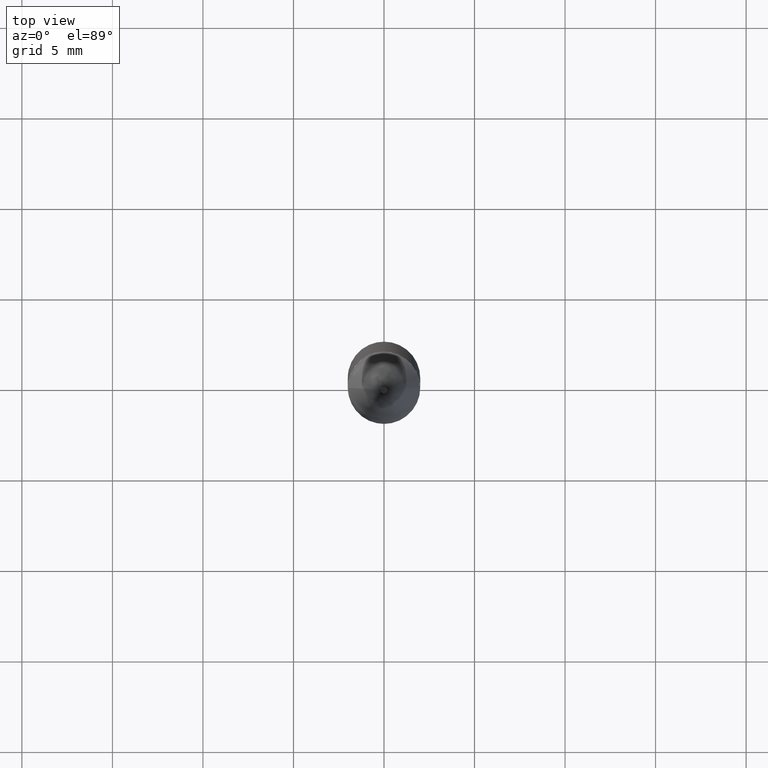
[diagram: clean part render]
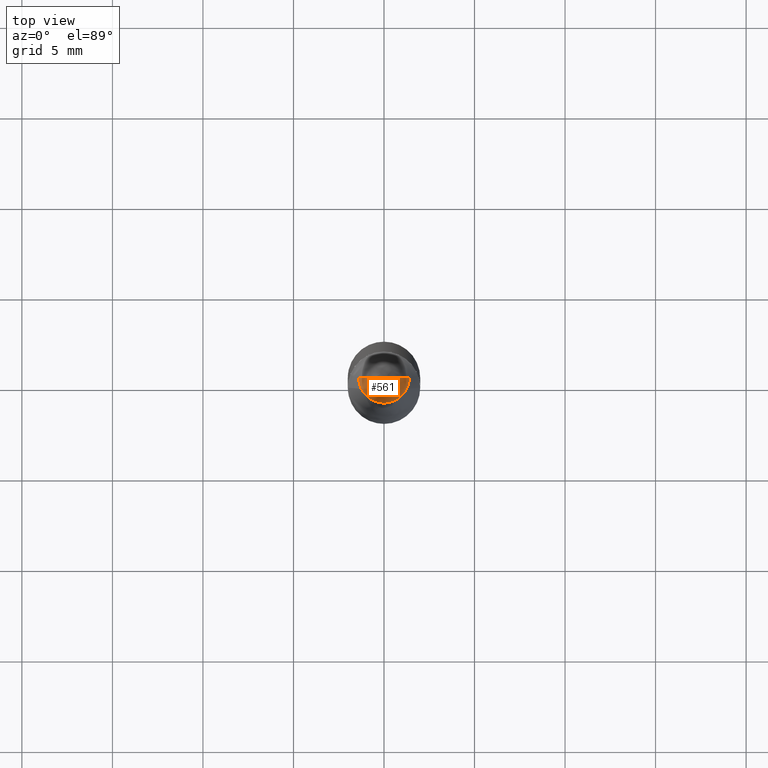
[diagram: same view with one face highlighted and labeled with its STEP entity id]
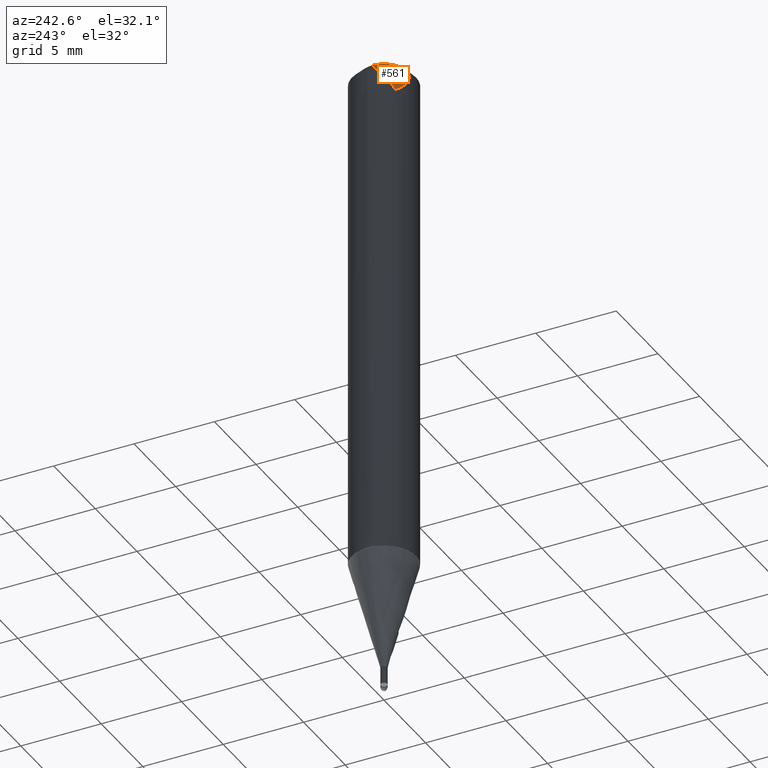
[diagram: same view with one face highlighted and labeled with its STEP entity id]
A machine part, top view. The second image highlights one B-rep face of the part: STEP entity #561.
A second angle (auxiliary view) of the same face is appended — the face is thin or edge-on in the first view.
In plain terms, the highlighted face is a freeform B-spline surface patch.
Its self-contained STEP definition (entity closure, byte-faithful):
#207=CARTESIAN_POINT('',(1.4,0.0,31.78));
#211=CARTESIAN_POINT('',(-1.4,0.0,31.78));
#212=CARTESIAN_POINT('',(0.0,0.0,31.78));
#222=CARTESIAN_POINT('',(-1.4,-1.4,31.78));
#223=CARTESIAN_POINT('',(0.0,-1.4,31.78));
#224=CARTESIAN_POINT('',(1.4,-1.4,31.78));
#546=(
BOUNDED_SURFACE()
B_SPLINE_SURFACE(1,2,(
(#211,#222,#223,#224,#207),
(#212,#212,#212,#212,#212)
), .UNSPECIFIED.,.F.,.F.,.F.)
B_SPLINE_SURFACE_WITH_KNOTS((2,2),(3,2,3),(
0.0,1.0),(
0.0,0.5,1.0), .UNSPECIFIED.)
GEOMETRIC_REPRESENTATION_ITEM()
RATIONAL_B_SPLINE_SURFACE(((1.0,0.707106781187,1.0,0.707106781187,1.0),
(1.0,0.707106781187,1.0,0.707106781187,1.0)
))
REPRESENTATION_ITEM('')
SURFACE()
);
#547=(
BOUNDED_CURVE()
B_SPLINE_CURVE(1,(#212,#207),.UNSPECIFIED.,.F.,.F.)
B_SPLINE_CURVE_WITH_KNOTS((2,2),
(0.0,1.0),.UNSPECIFIED.)
CURVE()
GEOMETRIC_REPRESENTATION_ITEM()
RATIONAL_B_SPLINE_CURVE((1.0,1.0))
REPRESENTATION_ITEM('')
);
#548=(
BOUNDED_CURVE()
B_SPLINE_CURVE(2,(#207,#224,#223,#222,#211),.UNSPECIFIED.,.F.,.F.)
B_SPLINE_CURVE_WITH_KNOTS((3,2,3),
(0.0,0.5,1.0),.UNSPECIFIED.)
CURVE()
GEOMETRIC_REPRESENTATION_ITEM()
RATIONAL_B_SPLINE_CURVE((1.0,0.707106781187,1.0,0.707106781187,1.0))
REPRESENTATION_ITEM('')
);
#549=(
BOUNDED_CURVE()
B_SPLINE_CURVE(1,(#211,#212),.UNSPECIFIED.,.F.,.F.)
B_SPLINE_CURVE_WITH_KNOTS((2,2),
(0.0,1.0),.UNSPECIFIED.)
CURVE()
GEOMETRIC_REPRESENTATION_ITEM()
RATIONAL_B_SPLINE_CURVE((1.0,1.0))
REPRESENTATION_ITEM('')
);
#550=VERTEX_POINT('',#207);
#551=VERTEX_POINT('',#211);
#552=VERTEX_POINT('',#212);
#553=EDGE_CURVE('',#552,#550,#547,.T.);
#554=EDGE_CURVE('',#550,#551,#548,.T.);
#555=EDGE_CURVE('',#551,#552,#549,.T.);
#556=ORIENTED_EDGE('',*,*,#553,.T.);
#557=ORIENTED_EDGE('',*,*,#554,.T.);
#558=ORIENTED_EDGE('',*,*,#555,.T.);
#559=EDGE_LOOP('',(#556,#557,#558));
#560=FACE_OUTER_BOUND('',#559,.T.);
#561=ADVANCED_FACE('',(#560),#546,.T.);